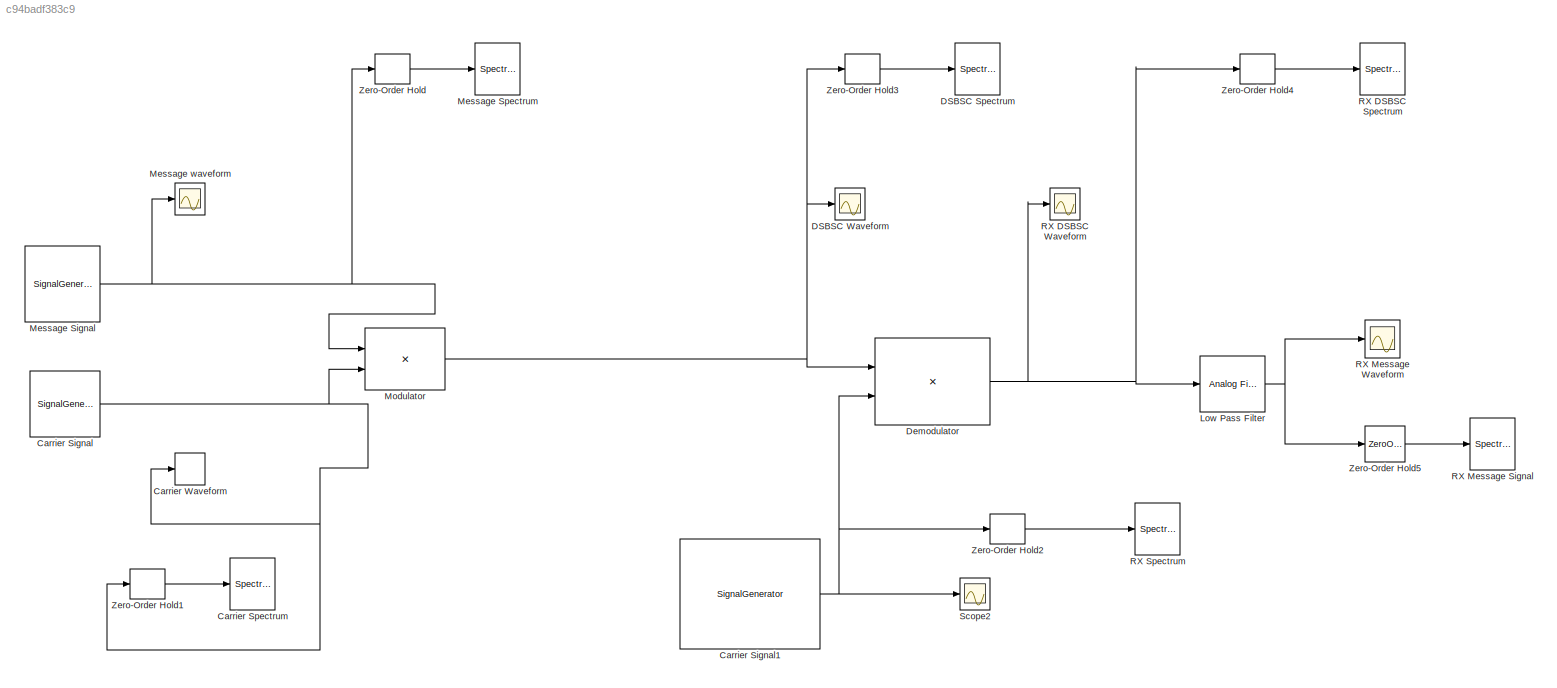
MODEL slx_c94badf383c9
KIND model
CONFIG AbsTol = auto
CONFIG FixedStep = auto
CONFIG MaxStep = auto
CONFIG MinStep = auto
CONFIG RelTol = 1e-3
CONFIG SampleTimeConstraint = Unconstrained
CONFIG Solver = ode45
CONFIG SolverMode = Auto
CONFIG SolverName = ode45
CONFIG StartTime = 0.0
CONFIG StopTime = 2
BLOCK [SignalGenerator] Carrier Signal
  Frequency = 1500
  Ports = [0, 1]
BLOCK [SignalGenerator] Carrier Signal1
  Frequency = 1500
  Ports = [0, 1]
BLOCK [SpectrumAnalyzer] Carrier Spectrum
  Ports = [1]
  ScopeSpecificationString = spbscopes.SpectrumAnalyzerBlockCfg('CurrentConfiguration', extmgr.ConfigurationSet(extmgr.Configuration('Core','General UI',true,'FigureColor',[1 1 1]),extmgr.Configuration('Core','Source UI',true),extmgr.Configuration('Sources','WiredSimulink',true),extmgr.Configuration('Sources','Simulink',false),extmgr.Configuration('Sources','SimulinkEvent',false),extmgr.Configuration('Sources','File',false),e...<+7118ch>
BLOCK [TimeScope] Carrier Waveform
  NumInputPorts = 1
  Ports = [1]
  ScopeSpecificationString = Simulink.scopes.TimeScopeBlockCfg('CurrentConfiguration', extmgr.ConfigurationSet(extmgr.Configuration('Core','General UI',true,'FigureColor',[1 1 1]),extmgr.Configuration('Core','Source UI',true),extmgr.Configuration('Sources','WiredSimulink',true,'DataLoggingVariableName','ScopeData1','DataLoggingDecimation','1','DataLoggingDecimateData',true,'DataLoggingSaveFormat','Array'),extmgr.Configuration...<+3237ch>
BLOCK [SpectrumAnalyzer] DSBSC Spectrum
  Ports = [1]
  ScopeSpecificationString = spbscopes.SpectrumAnalyzerBlockCfg('CurrentConfiguration', extmgr.ConfigurationSet(extmgr.Configuration('Core','General UI',true,'FigureColor',[1 1 1]),extmgr.Configuration('Core','Source UI',true),extmgr.Configuration('Sources','WiredSimulink',true),extmgr.Configuration('Sources','Simulink',false),extmgr.Configuration('Sources','SimulinkEvent',false),extmgr.Configuration('Sources','File',false),e...<+7052ch>
BLOCK [Scope] DSBSC Waveform
  Floating = off
  LimitDataPoints = off
  NumInputPorts = 1
  Ports = [1]
  SaveName = ScopeData3
  TimeRange = 0.05
  YMax = 2
  YMin = -2
BLOCK [Product] Demodulator
  InputSameDT = off
  OutDataTypeStr = Inherit: Inherit via internal rule
  Ports = [2, 1]
  RndMeth = Floor
  SaturateOnIntegerOverflow = off
BLOCK [Reference] Low Pass Filter  REF=dsparch4/Analog
Filter Design
  N = 8
  Ports = [1, 1]
  Rp = 2
  Rs = 40
  SourceBlock = dsparch4/Analog\nFilter Design
  SourceType = Analog Filter Design
  Whi = 80
  Wlo = 2*pi*400
  filttype = Lowpass
  method = Butterworth
BLOCK [SignalGenerator] Message Signal
  Frequency = 200
  Ports = [0, 1]
BLOCK [SpectrumAnalyzer] Message Spectrum
  Ports = [1]
  ScopeSpecificationString = spbscopes.SpectrumAnalyzerBlockCfg('CurrentConfiguration', extmgr.ConfigurationSet(extmgr.Configuration('Core','General UI',true,'FigureColor',[1 1 1]),extmgr.Configuration('Core','Source UI',true),extmgr.Configuration('Sources','WiredSimulink',true),extmgr.Configuration('Sources','Simulink',false),extmgr.Configuration('Sources','SimulinkEvent',false),extmgr.Configuration('Sources','File',false),e...<+7197ch>
BLOCK [Scope] Message waveform
  Floating = off
  LimitDataPoints = off
  NumInputPorts = 1
  Ports = [1]
  TickLabels = on
  TimeRange = 0.05
  YMax = 2
  YMin = -2
BLOCK [Product] Modulator
  InputSameDT = off
  OutDataTypeStr = Inherit: Inherit via internal rule
  Ports = [2, 1]
  RndMeth = Floor
  SaturateOnIntegerOverflow = off
BLOCK [SpectrumAnalyzer] RX DSBSC Spectrum
  Ports = [1]
  ScopeSpecificationString = spbscopes.SpectrumAnalyzerBlockCfg('CurrentConfiguration', extmgr.ConfigurationSet(extmgr.Configuration('Core','General UI',true),extmgr.Configuration('Core','Source UI',true),extmgr.Configuration('Sources','WiredSimulink',true),extmgr.Configuration('Sources','Simulink',false),extmgr.Configuration('Sources','SimulinkEvent',false),extmgr.Configuration('Sources','File',false),extmgr.Configuration('S...<+7101ch>
BLOCK [Scope] RX DSBSC Waveform
  Floating = off
  LimitDataPoints = off
  NumInputPorts = 1
  Ports = [1]
  SaveName = ScopeData4
  TimeRange = 0.05
  YMax = 2
  YMin = -2
BLOCK [SpectrumAnalyzer] RX Message Signal
  Ports = [1]
  ScopeSpecificationString = spbscopes.SpectrumAnalyzerBlockCfg('CurrentConfiguration', extmgr.ConfigurationSet(extmgr.Configuration('Core','General UI',true,'FigureColor',[0 0 0]),extmgr.Configuration('Core','Source UI',true),extmgr.Configuration('Sources','WiredSimulink',true),extmgr.Configuration('Sources','Simulink',false),extmgr.Configuration('Sources','SimulinkEvent',false),extmgr.Configuration('Sources','File',false),e...<+7122ch>
BLOCK [Scope] RX Message Waveform
  Floating = off
  LimitDataPoints = off
  NumInputPorts = 1
  Ports = [1]
  SaveName = ScopeData5
  TimeRange = 0.05
  YMax = 0.5
  YMin = -0.5
BLOCK [SpectrumAnalyzer] RX Spectrum
  Ports = [1]
  ScopeSpecificationString = spbscopes.SpectrumAnalyzerBlockCfg('CurrentConfiguration', extmgr.ConfigurationSet(extmgr.Configuration('Core','General UI',true),extmgr.Configuration('Core','Source UI',true),extmgr.Configuration('Sources','WiredSimulink',true),extmgr.Configuration('Sources','Simulink',false),extmgr.Configuration('Sources','SimulinkEvent',false),extmgr.Configuration('Sources','File',false),extmgr.Configuration('S...<+7234ch>
BLOCK [Scope] Scope2
  Floating = off
  NumInputPorts = 1
  Ports = [1]
  SaveName = ScopeData2
BLOCK [ZeroOrderHold] Zero-Order Hold
  SampleTime = 1/4000
BLOCK [ZeroOrderHold] Zero-Order Hold1
  SampleTime = 1/30000
BLOCK [ZeroOrderHold] Zero-Order Hold2
  SampleTime = 1/30000
BLOCK [ZeroOrderHold] Zero-Order Hold3
  SampleTime = 1/30000
BLOCK [ZeroOrderHold] Zero-Order Hold4
  SampleTime = 1/30000
BLOCK [ZeroOrderHold] Zero-Order Hold5
  SampleTime = 1/30000
NET Carrier Signal1:1 -> Demodulator:2, Scope2:1, Zero-Order Hold2:1
NET Carrier Signal:1 -> Carrier Waveform:1, Modulator:2, Zero-Order Hold1:1
NET Demodulator:1 -> Low Pass Filter:1, RX DSBSC Waveform:1, Zero-Order Hold4:1
NET Low Pass Filter:1 -> RX Message Waveform:1, Zero-Order Hold5:1
NET Message Signal:1 -> Message waveform:1, Modulator:1, Zero-Order Hold:1
NET Modulator:1 -> DSBSC Waveform:1, Demodulator:1, Zero-Order Hold3:1
LINE Zero-Order Hold1:1 -> Carrier Spectrum:1
LINE Zero-Order Hold2:1 -> RX Spectrum:1
LINE Zero-Order Hold3:1 -> DSBSC Spectrum:1
LINE Zero-Order Hold4:1 -> RX DSBSC Spectrum:1
LINE Zero-Order Hold5:1 -> RX Message Signal:1
LINE Zero-Order Hold:1 -> Message Spectrum:1
note: NET lines group one-source signal fan-out (src -> all destinations, sorted); 1:1 wires keep LINE
